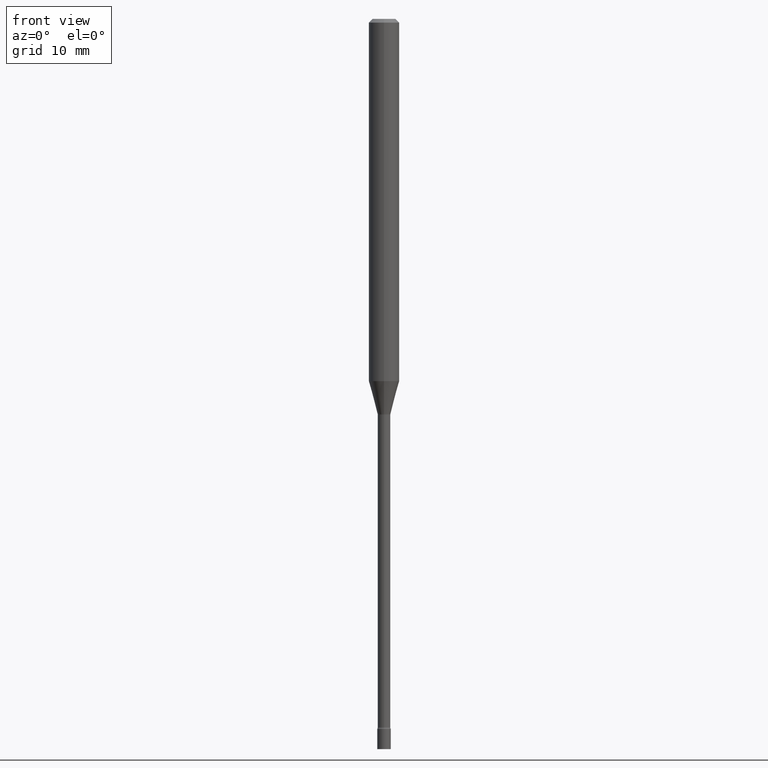
[diagram: clean part render]
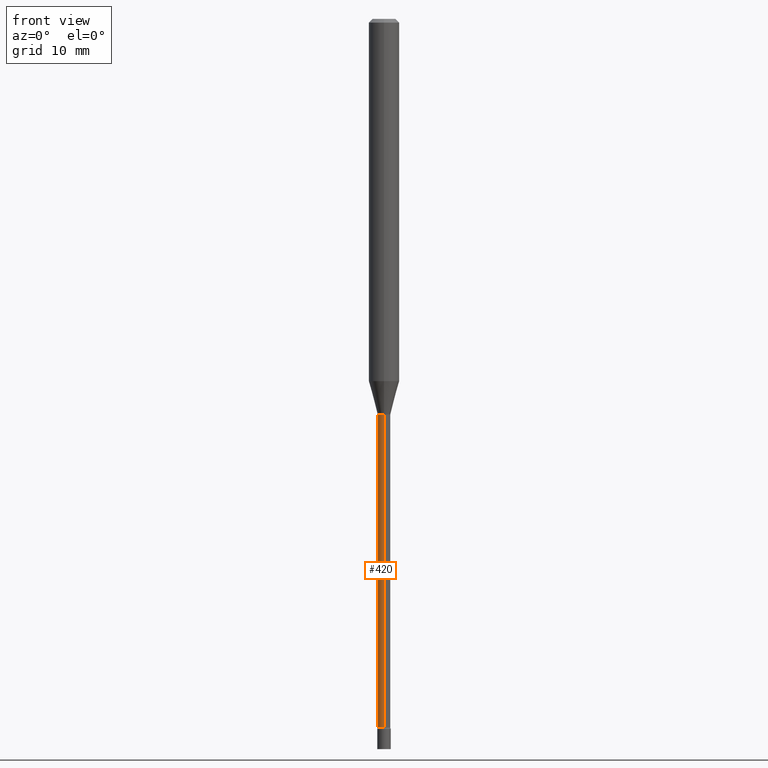
[diagram: same view with one face highlighted and labeled with its STEP entity id]
A machine part, front view. The second image highlights one B-rep face of the part: STEP entity #420.
In plain terms, the highlighted cylindrical surface (edge-blend (fillet) strip) has radius 0.6566 mm, axis along (-0, 0, 1).
Its self-contained STEP definition (entity closure, byte-faithful):
#27 = ORIENTED_EDGE ( 'NONE', *, *, #328, .T. ) ;
#38 = DIRECTION ( 'NONE',  ( -2.445428699565055346E-29, 3.491538773805828826E-15, 1.000000000000000000 ) ) ;
#43 = CARTESIAN_POINT ( 'NONE',  ( 1.836752971940574728E-16, 0.02584999999999431503, -1.626974787463811412 ) ) ;
#51 = FACE_OUTER_BOUND ( 'NONE', #437, .T. ) ;
#57 = LINE ( 'NONE', #258, #455 ) ;
#69 = EDGE_CURVE ( 'NONE', #229, #354, #325, .T. ) ;
#89 = CARTESIAN_POINT ( 'NONE',  ( -1.805095852181904702E-16, -0.02585000000000007084, 9.025627730288093194E-17 ) ) ;
#95 = CARTESIAN_POINT ( 'NONE',  ( 1.895372747640785166E-16, 0.02584999999998998516, -2.910160592130893953 ) ) ;
#97 = DIRECTION ( 'NONE',  ( -6.982962677686265922E-15, -1.000000000000000000, 3.491538773805829221E-15 ) ) ;
#125 = AXIS2_PLACEMENT_3D ( 'NONE', #488, #290, #205 ) ;
#126 = AXIS2_PLACEMENT_3D ( 'NONE', #464, #461, #97 ) ;
#129 = ORIENTED_EDGE ( 'NONE', *, *, #289, .T. ) ;
#140 = CYLINDRICAL_SURFACE ( 'NONE', #126, 0.02585000000000007084 ) ;
#148 = ORIENTED_EDGE ( 'NONE', *, *, #69, .F. ) ;
#205 = DIRECTION ( 'NONE',  ( -6.982962677686266711E-15, -1.000000000000000000, 0.000000000000000000 ) ) ;
#229 = VERTEX_POINT ( 'NONE', #43 ) ;
#258 = CARTESIAN_POINT ( 'NONE',  ( 1.836752971939863767E-16, 0.02585000000000007084, -9.025627730288093194E-17 ) ) ;
#289 = EDGE_CURVE ( 'NONE', #470, #459, #356, .T. ) ;
#290 = DIRECTION ( 'NONE',  ( -2.445428699565055346E-29, 3.491538773805828826E-15, 1.000000000000000000 ) ) ;
#305 = AXIS2_PLACEMENT_3D ( 'NONE', #482, #38, #433 ) ;
#325 = CIRCLE ( 'NONE', #305, 0.02584999999999999451 ) ;
#328 = EDGE_CURVE ( 'NONE', #459, #354, #456, .T. ) ;
#351 = ORIENTED_EDGE ( 'NONE', *, *, #365, .F. ) ;
#354 = VERTEX_POINT ( 'NONE', #371 ) ;
#356 = CIRCLE ( 'NONE', #125, 0.02585000000000014370 ) ;
#365 = EDGE_CURVE ( 'NONE', #470, #229, #57, .T. ) ;
#371 = CARTESIAN_POINT ( 'NONE',  ( -1.805095852181501643E-16, -0.02585000000000567746, -1.626974787463811412 ) ) ;
#415 = CARTESIAN_POINT ( 'NONE',  ( -1.805095852181198424E-16, -0.02585000000001030224, -2.910160592130893953 ) ) ;
#418 = DIRECTION ( 'NONE',  ( -2.445428699565055346E-29, 3.491538773805828432E-15, 1.000000000000000000 ) ) ;
#420 = ADVANCED_FACE ( 'NONE', ( #51 ), #140, .T. ) ;
#433 = DIRECTION ( 'NONE',  ( -6.982962677686266711E-15, -1.000000000000000000, 0.000000000000000000 ) ) ;
#437 = EDGE_LOOP ( 'NONE', ( #351, #129, #27, #148 ) ) ;
#455 = VECTOR ( 'NONE', #418, 39.37007874015748143 ) ;
#456 = LINE ( 'NONE', #89, #506 ) ;
#459 = VERTEX_POINT ( 'NONE', #415 ) ;
#461 = DIRECTION ( 'NONE',  ( -2.445428699565055346E-29, 3.491538773805828826E-15, 1.000000000000000000 ) ) ;
#464 = CARTESIAN_POINT ( 'NONE',  ( 0.000000000000000000, 0.000000000000000000, 0.000000000000000000 ) ) ;
#470 = VERTEX_POINT ( 'NONE', #95 ) ;
#482 = CARTESIAN_POINT ( 'NONE',  ( 3.978650838732760149E-29, -5.680645554434395144E-15, -1.626974787463811412 ) ) ;
#488 = CARTESIAN_POINT ( 'NONE',  ( 7.116590232340123908E-29, -1.016093854542674699E-14, -2.910160592130893953 ) ) ;
#489 = DIRECTION ( 'NONE',  ( -2.445428699565055346E-29, 3.491538773805828432E-15, 1.000000000000000000 ) ) ;
#506 = VECTOR ( 'NONE', #489, 39.37007874015748143 ) ;